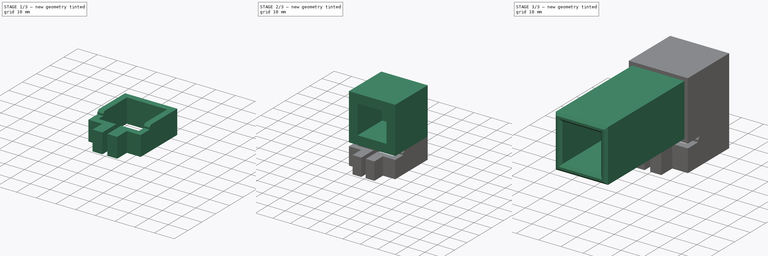
[diagram: build sequence overview — one tinted view per stage of 3, left to right]
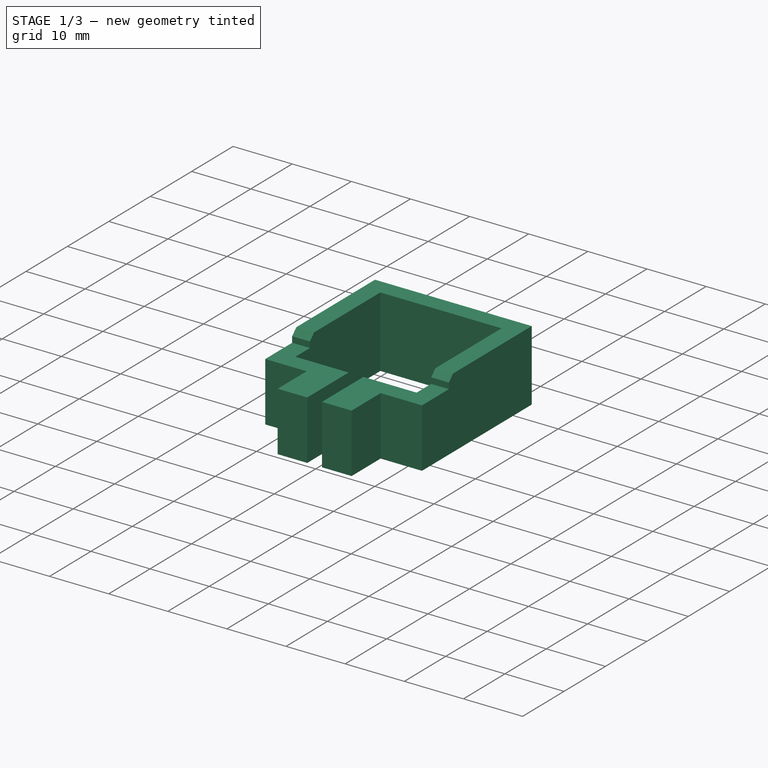
[diagram: stage 1 of 3 — iso view after this stage's code; geometry added in this stage tinted green]
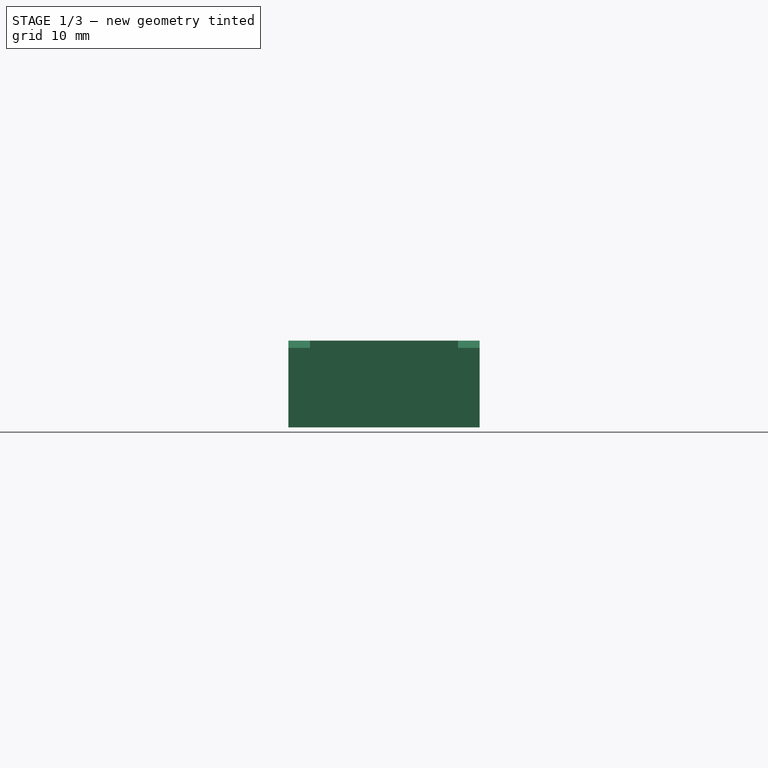
[diagram: stage 1 of 3 — front view after this stage's code; geometry added in this stage tinted green]
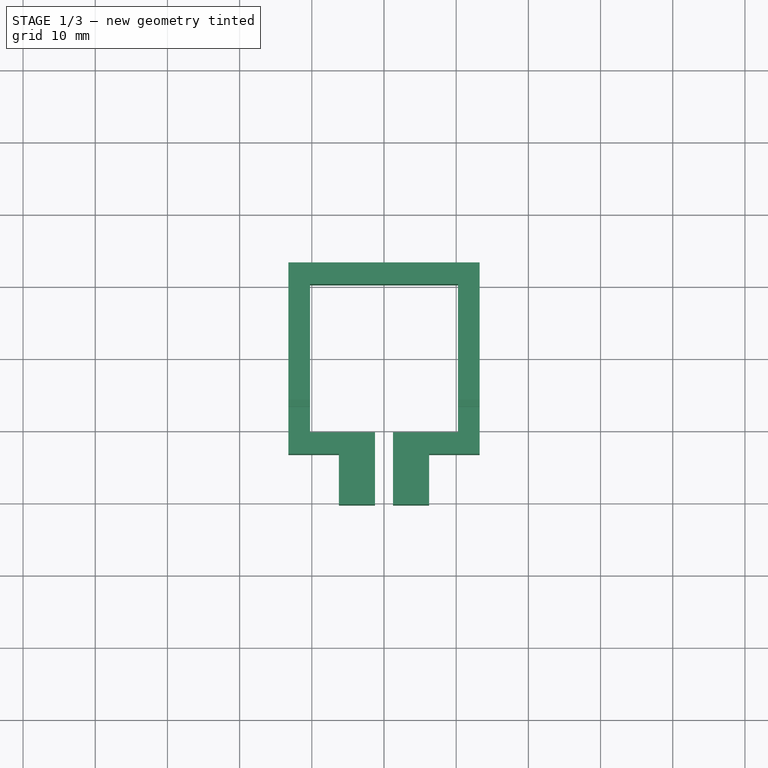
[diagram: stage 1 of 3 — top view after this stage's code; geometry added in this stage tinted green]
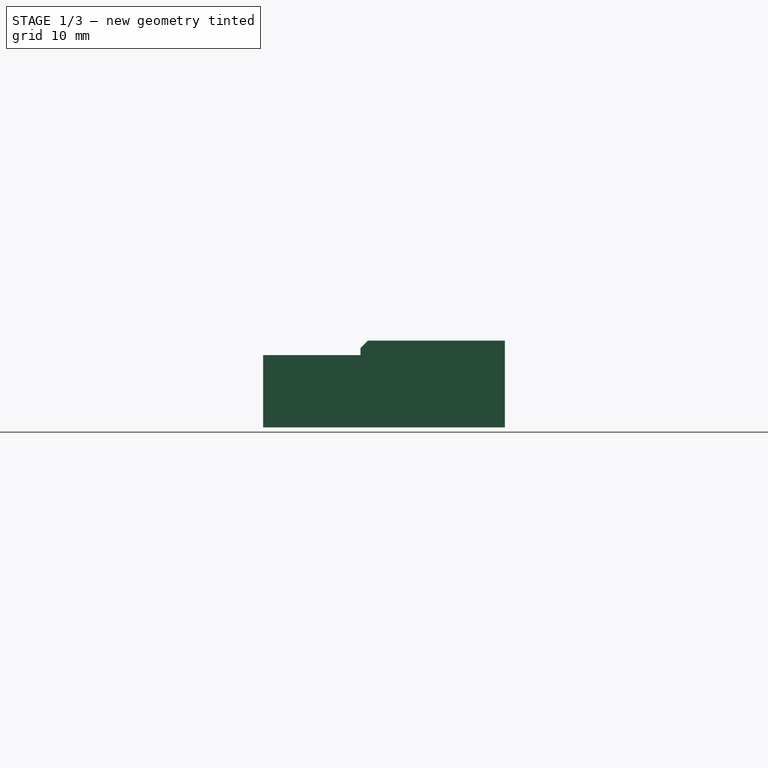
[diagram: stage 1 of 3 — right view after this stage's code; geometry added in this stage tinted green]
FCSTD DOCUMENT  (FreeCAD 0.21R33771 (Git))
Label: Dachreling_KlemmeV1
License: All rights reserved
LicenseURL: http://en.wikipedia.org/wiki/All_rights_reserved
objects: Sketcher::SketchObject×6, PartDesign::Pad×4, PartDesign::Chamfer×2, PartDesign::Pocket×2, PartDesign::Body×1
note: 23 computed .brp shape members not serialized (recipe doc carries the construction recipe); baked Part::Feature solids carry a one-line shape summary decoded from their .brp

FEATURE [Sketcher::SketchObject] Sketch
  FullyConstrained = true
  MapMode = 5
  Support = -> [XY_Plane]
  sketch-geometry (16):
    g0: LineSegment StartX=6.25 StartY=-20.25 StartZ=0 EndX=6.25 EndY=-13.25 EndZ=0
    g1: LineSegment StartX=6.25 StartY=-13.25 StartZ=0 EndX=13.25 EndY=-13.25 EndZ=0
    g2: LineSegment StartX=13.25 StartY=-13.25 StartZ=0 EndX=13.25 EndY=13.25 EndZ=0
    g3: LineSegment StartX=13.25 StartY=13.25 StartZ=0 EndX=-13.25 EndY=13.25 EndZ=0
    g4: LineSegment StartX=-13.25 StartY=13.25 StartZ=0 EndX=-13.25 EndY=-13.25 EndZ=0
    g5: LineSegment StartX=-13.25 StartY=-13.25 StartZ=0 EndX=-6.25 EndY=-13.25 EndZ=0
    g6: LineSegment StartX=-6.25 StartY=-13.25 StartZ=0 EndX=-6.25 EndY=-20.25 EndZ=0
    g7: LineSegment StartX=-6.25 StartY=-20.25 StartZ=0 EndX=-1.25 EndY=-20.25 EndZ=0
    g8: LineSegment StartX=-1.25 StartY=-20.25 StartZ=0 EndX=-1.25 EndY=-10.25 EndZ=0
    g9: LineSegment StartX=-1.25 StartY=-10.25 StartZ=0 EndX=-10.25 EndY=-10.25 EndZ=0
    g10: LineSegment StartX=-10.25 StartY=-10.25 StartZ=0 EndX=-10.25 EndY=10.25 EndZ=0
    g11: LineSegment StartX=-10.25 StartY=10.25 StartZ=0 EndX=10.25 EndY=10.25 EndZ=0
    g12: LineSegment StartX=10.25 StartY=10.25 StartZ=0 EndX=10.25 EndY=-10.25 EndZ=0
    g13: LineSegment StartX=10.25 StartY=-10.25 StartZ=0 EndX=1.25 EndY=-10.25 EndZ=0
    g14: LineSegment StartX=1.25 StartY=-10.25 StartZ=0 EndX=1.25 EndY=-20.25 EndZ=0
    g15: LineSegment StartX=1.25 StartY=-20.25 StartZ=0 EndX=6.25 EndY=-20.25 EndZ=0
  constraints (46):
    c: Vertical(g0)
    c: Coincident(g0,g1)
    c: Horizontal(g1)
    c: Coincident(g1,g2)
    c: Vertical(g2)
    c: Coincident(g2,g3)
    c: Horizontal(g3)
    c: Coincident(g3,g4)
    c: Vertical(g4)
    c: Coincident(g4,g5)
    c: Horizontal(g5)
    c: Coincident(g5,g6)
    c: Vertical(g6)
    c: Coincident(g6,g7)
    c: Horizontal(g7)
    c: Coincident(g7,g8)
    c: Vertical(g8)
    c: Coincident(g8,g9)
    c: Horizontal(g9)
    c: Coincident(g9,g10)
    c: Vertical(g10)
    c: Coincident(g10,g11)
    c: Horizontal(g11)
    c: Coincident(g11,g12)
    c: Coincident(g12,g13)
    c: Horizontal(g13)
    c: Coincident(g13,g14)
    c: Vertical(g14)
    c: Coincident(g14,g15)
    c: Coincident(g15,g0)
    c: Distance(g9,g4) = 3
    c: Distance(g9,g5) = 3
    c: Distance(g12,g2) = 3
    c: Distance(g12,g1) = 3
    c: Distance(g11,g3) = 3
    c: Distance(g8) = 10
    c: Distance(g7) = 5
    c: Distance(g15) = 5
    c: Horizontal(g15)
    c: Horizontal(g7,g14)
    c: Distance(g10) = 20.5
    c: Distance(g11) = 20.5
    c: Symmetric(g9,g12,g-2)
    c: Distance(g13) = 9
    c: Distance(g9) = 9
    c: Symmetric(g12,g11,g-1)
FEATURE [PartDesign::Pad] Pad
  Direction = (0,0,1)
  Length = 10
  Length2 = 10
  Profile = -> Sketch
  ReferenceAxis = -> Sketch [N_Axis]
  Type = 0
FEATURE [Sketcher::SketchObject] Sketch001
  ExternalGeometry = -> [Pad]
  FullyConstrained = true
  MapMode = 5
  Placement = pos=(0,0,10) rot=(0,0,1;0rad)
  Support = -> [Pad]
  sketch-geometry (8):
    g0: LineSegment StartX=-10.25 StartY=-6.75 StartZ=0 EndX=-13.25 EndY=-6.75 EndZ=0
    g1: LineSegment StartX=-13.25 StartY=-6.75 StartZ=0 EndX=-13.25 EndY=13.25 EndZ=0
    g2: LineSegment StartX=-13.25 StartY=13.25 StartZ=0 EndX=13.25 EndY=13.25 EndZ=0
    g3: LineSegment StartX=13.25 StartY=13.25 StartZ=0 EndX=13.25 EndY=-6.75 EndZ=0
    g4: LineSegment StartX=13.25 StartY=-6.75 StartZ=0 EndX=10.25 EndY=-6.75 EndZ=0
    g5: LineSegment StartX=10.25 StartY=-6.75 StartZ=0 EndX=10.25 EndY=10.25 EndZ=0
    g6: LineSegment StartX=10.25 StartY=10.25 StartZ=0 EndX=-10.25 EndY=10.25 EndZ=0
    g7: LineSegment StartX=-10.25 StartY=10.25 StartZ=0 EndX=-10.25 EndY=-6.75 EndZ=0
  constraints (20):
    c: PointOnObject(g0,g-3)
    c: PointOnObject(g0,g-4)
    c: Horizontal(g0)
    c: Coincident(g0,g1)
    c: Coincident(g1,g-6)
    c: Coincident(g1,g2)
    c: Coincident(g2,g-7)
    c: Coincident(g2,g3)
    c: PointOnObject(g3,g-7)
    c: Coincident(g3,g4)
    c: PointOnObject(g4,g-8)
    c: Horizontal(g4)
    c: Coincident(g4,g5)
    c: Coincident(g5,g-8)
    c: Coincident(g5,g6)
    c: Coincident(g6,g-5)
    c: Coincident(g6,g7)
    c: Coincident(g7,g0)
    c: Horizontal(g4,g0)
    c: Distance(g3) = 20
FEATURE [PartDesign::Pad] Pad001
  BaseFeature = -> Pad
  Direction = (0,0,1)
  Length = 2
  Length2 = 10
  Profile = -> Sketch001
  ReferenceAxis = -> Sketch001 [N_Axis]
  Type = 0
FEATURE [PartDesign::Chamfer] Chamfer
  Angle = 45
  Base = -> Pad001 [Edge70,Edge56]
  BaseFeature = -> Pad001
  ChamferType = 0
  FlipDirection = false
  Size = 1
  Size2 = 1
  SupportTransform = false
  UseAllEdges = false
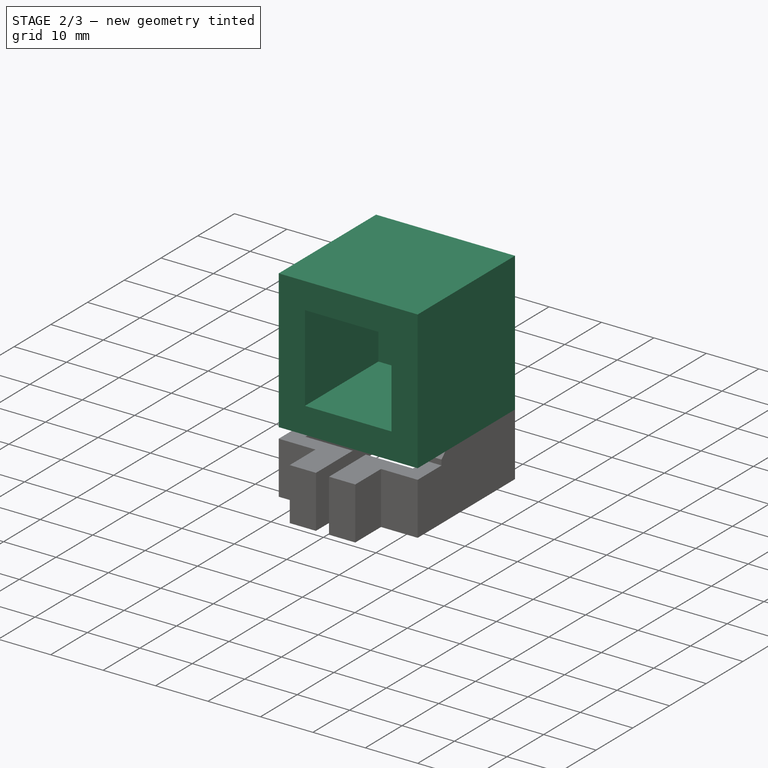
[diagram: stage 2 of 3 — iso view after this stage's code; geometry added in this stage tinted green]
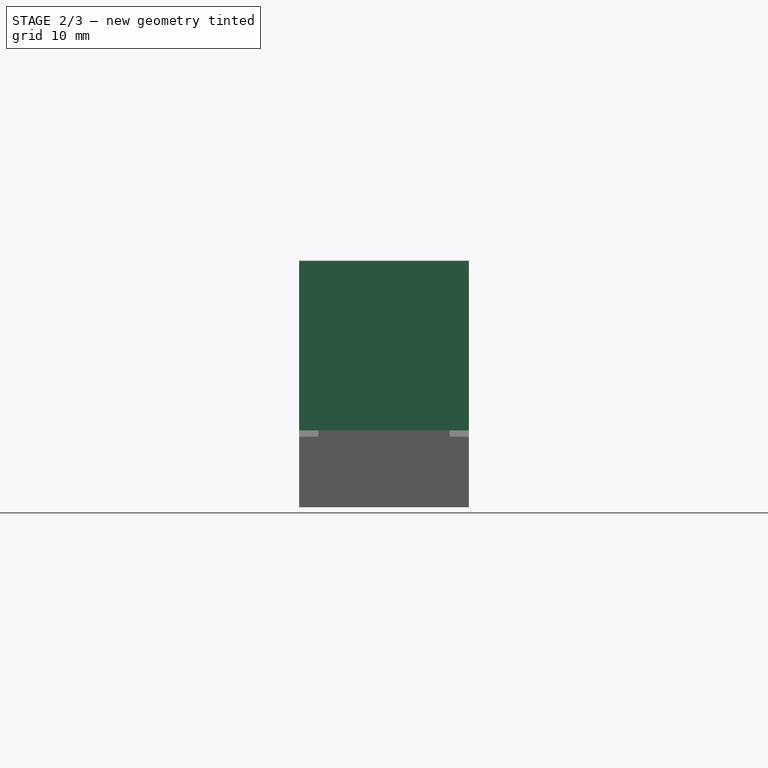
[diagram: stage 2 of 3 — front view after this stage's code; geometry added in this stage tinted green]
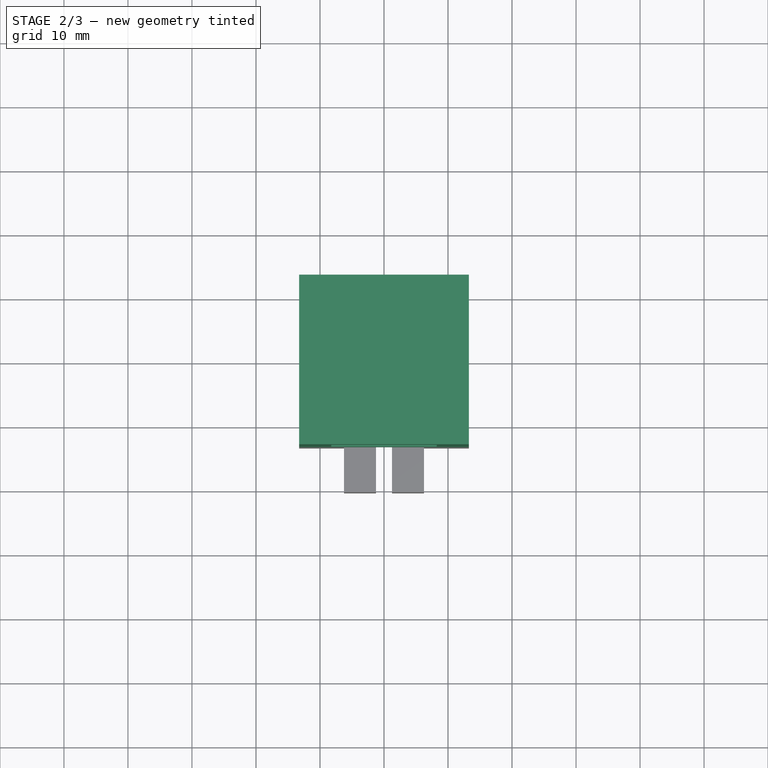
[diagram: stage 2 of 3 — top view after this stage's code; geometry added in this stage tinted green]
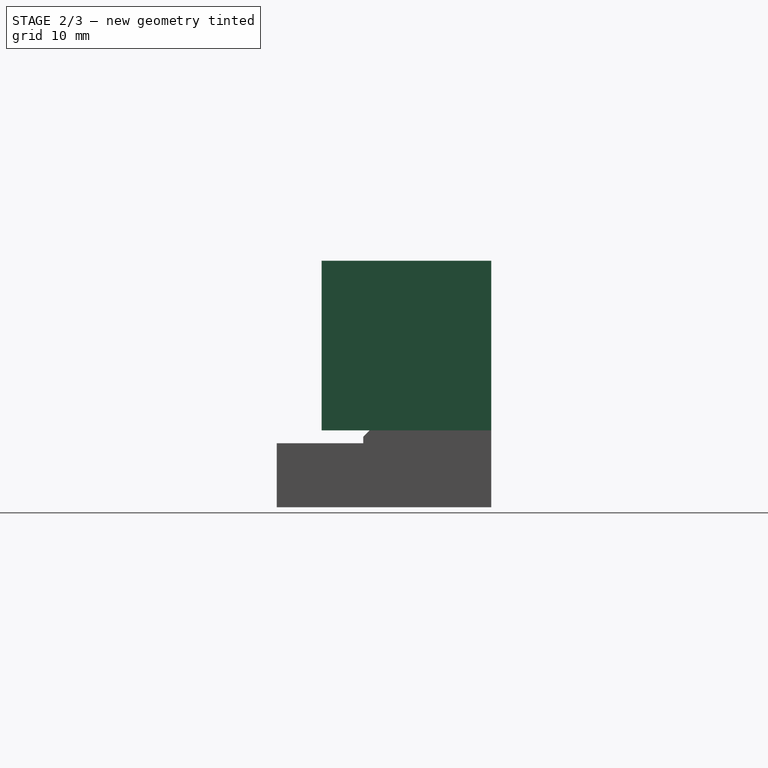
[diagram: stage 2 of 3 — right view after this stage's code; geometry added in this stage tinted green]
FEATURE [Sketcher::SketchObject] Sketch002
  ExternalGeometry = -> [Chamfer]
  FullyConstrained = true
  MapMode = 5
  Placement = pos=(0,0,12) rot=(0,0,1;0rad)
  Support = -> [Chamfer]
  sketch-geometry (4):
    g0: LineSegment StartX=-13.25 StartY=13.25 StartZ=0 EndX=13.25 EndY=13.25 EndZ=0
    g1: LineSegment StartX=13.25 StartY=13.25 StartZ=0 EndX=13.25 EndY=-13.25 EndZ=0
    g2: LineSegment StartX=13.25 StartY=-13.25 StartZ=0 EndX=-13.25 EndY=-13.25 EndZ=0
    g3: LineSegment StartX=-13.25 StartY=-13.25 StartZ=0 EndX=-13.25 EndY=13.25 EndZ=0
  constraints (11):
    c: Coincident(g0,g1)
    c: Coincident(g1,g2)
    c: Coincident(g2,g3)
    c: Coincident(g3,g0)
    c: Horizontal(g0)
    c: Horizontal(g2)
    c: Vertical(g1)
    c: Vertical(g3)
    c: Coincident(g0,g-4)
    c: Distance(g1) = 26.5
    c: Distance(g0) = 26.5
FEATURE [PartDesign::Pad] Pad002
  BaseFeature = -> Chamfer
  Direction = (0,0,1)
  Length = 26.5
  Length2 = 10
  Profile = -> Sketch002
  ReferenceAxis = -> Sketch002 [N_Axis]
  Type = 0
FEATURE [Sketcher::SketchObject] Sketch003
  ExternalGeometry = -> [Pad002]
  FullyConstrained = true
  MapMode = 5
  Placement = pos=(0,-13.25,0) rot=(1,0,0;1.5708rad)
  Support = -> [Pad002]
  sketch-geometry (4):
    g0: LineSegment StartX=-8.25 StartY=33.5 StartZ=0 EndX=8.25 EndY=33.5 EndZ=0
    g1: LineSegment StartX=8.25 StartY=33.5 StartZ=0 EndX=8.25 EndY=17 EndZ=0
    g2: LineSegment StartX=8.25 StartY=17 StartZ=0 EndX=-8.25 EndY=17 EndZ=0
    g3: LineSegment StartX=-8.25 StartY=17 StartZ=0 EndX=-8.25 EndY=33.5 EndZ=0
  constraints (11):
    c: Coincident(g0,g1)
    c: Coincident(g1,g2)
    c: Coincident(g2,g3)
    c: Coincident(g3,g0)
    c: Horizontal(g0)
    c: Vertical(g1)
    c: Vertical(g3)
    c: Symmetric(g2,g1,g-2)
    c: Distance(g0,g-4) = 5
    c: Distance(g2,g-3) = 5
    c: Distance(g1,g-5) = 5
FEATURE [PartDesign::Pocket] Pocket
  BaseFeature = -> Pad002
  Direction = (0,1,-2e-16)
  Length = 20
  Length2 = 5
  Profile = -> Sketch003
  ReferenceAxis = -> Sketch003 [N_Axis]
  Type = 0
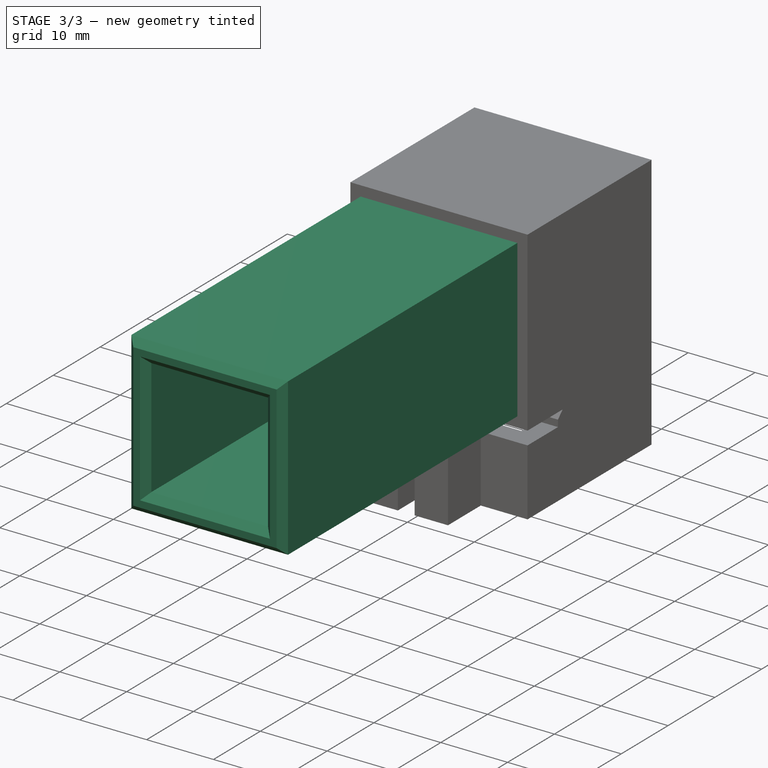
[diagram: stage 3 of 3 — iso view after this stage's code; geometry added in this stage tinted green]
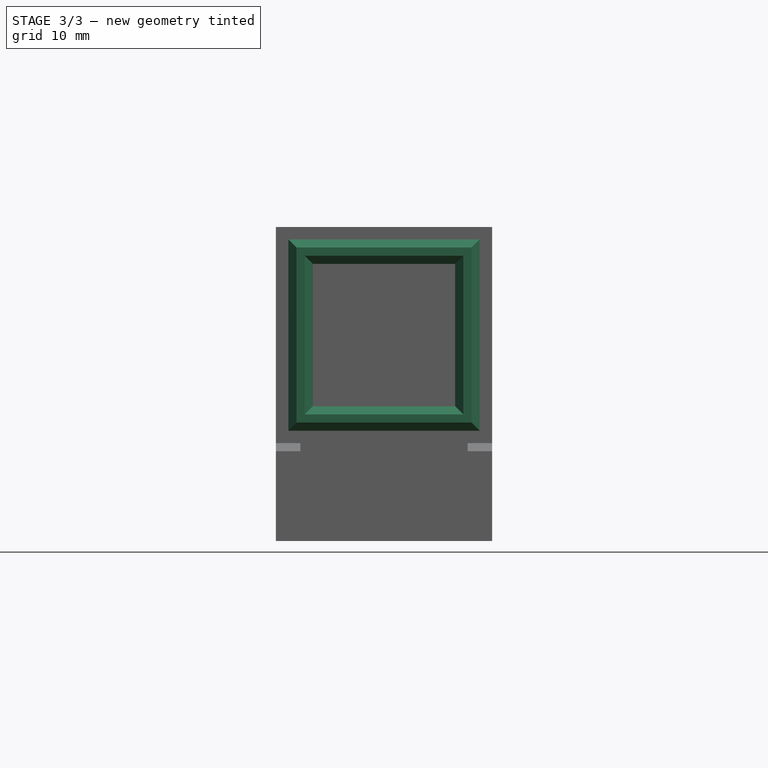
[diagram: stage 3 of 3 — front view after this stage's code; geometry added in this stage tinted green]
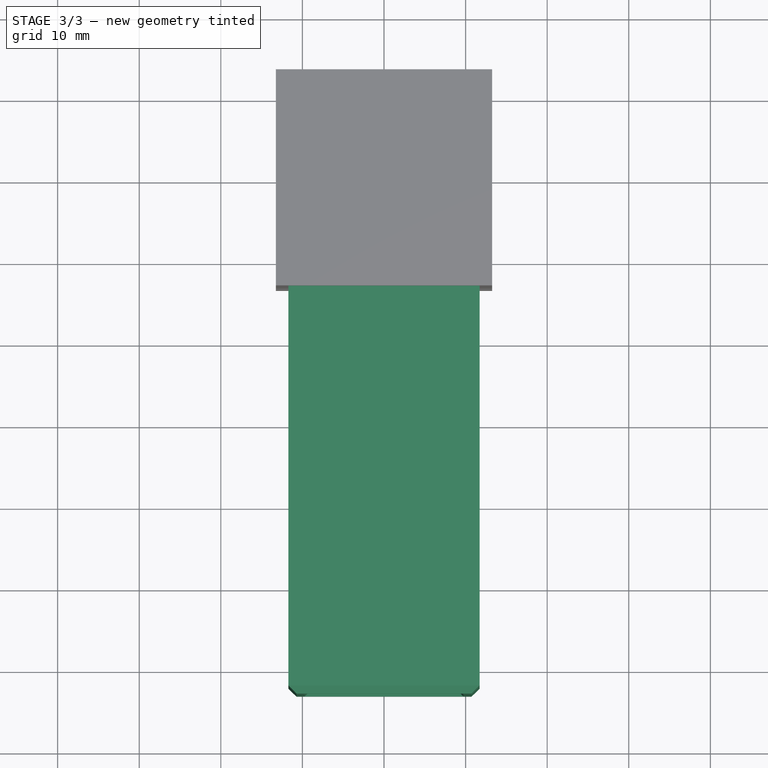
[diagram: stage 3 of 3 — top view after this stage's code; geometry added in this stage tinted green]
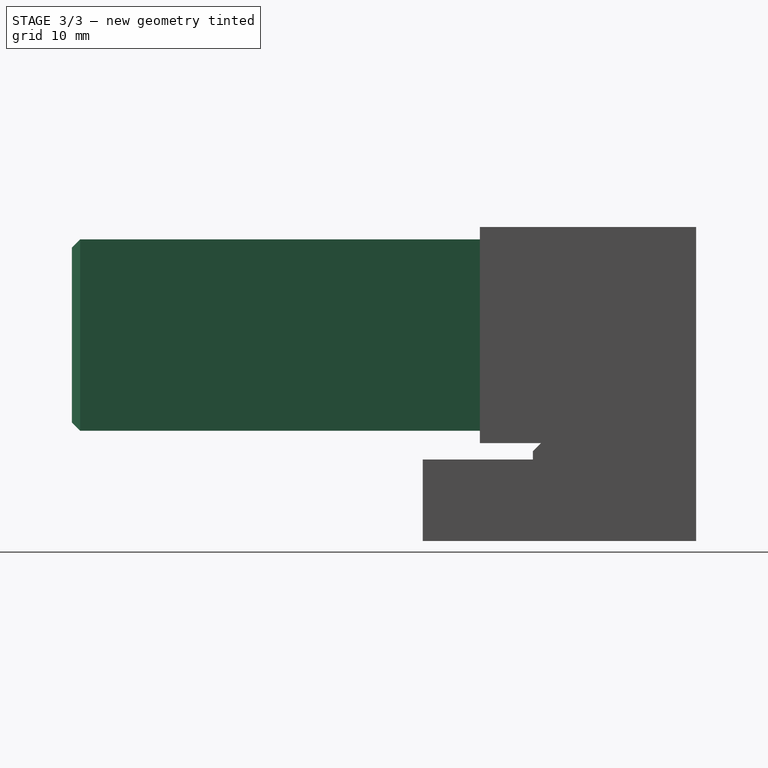
[diagram: stage 3 of 3 — right view after this stage's code; geometry added in this stage tinted green]
FEATURE [Sketcher::SketchObject] Sketch004
  ExternalGeometry = -> [Pocket]
  FullyConstrained = true
  MapMode = 5
  Placement = pos=(0,0,12) rot=(1,0,0;3.14159rad)
  Support = -> [Pocket]
  sketch-geometry (4):
    g0: LineSegment StartX=-10.25 StartY=-10.25 StartZ=0 EndX=10.25 EndY=-10.25 EndZ=0
    g1: LineSegment StartX=10.25 StartY=-10.25 StartZ=0 EndX=10.25 EndY=10.25 EndZ=0
    g2: LineSegment StartX=10.25 StartY=10.25 StartZ=0 EndX=-10.25 EndY=10.25 EndZ=0
    g3: LineSegment StartX=-10.25 StartY=10.25 StartZ=0 EndX=-10.25 EndY=-10.25 EndZ=0
  constraints (11):
    c: Coincident(g0,g1)
    c: Coincident(g1,g2)
    c: Coincident(g2,g3)
    c: Coincident(g3,g0)
    c: Horizontal(g0)
    c: Horizontal(g2)
    c: Vertical(g1)
    c: Vertical(g3)
    c: Coincident(g0,g-4)
    c: Distance(g2) = 20.5
    c: Distance(g1) = 20.5
FEATURE [PartDesign::Pocket] Pocket001
  BaseFeature = -> Pocket
  Direction = (0,0,1)
  Length = 5
  Length2 = 5
  Profile = -> Sketch004
  ReferenceAxis = -> Sketch004 [N_Axis]
  Type = 0
FEATURE [Sketcher::SketchObject] Sketch005
  ExternalGeometry = -> [Pocket001]
  FullyConstrained = true
  MapMode = 5
  Placement = pos=(0,-13.25,0) rot=(1,0,0;1.5708rad)
  Support = -> [Pocket001]
  sketch-geometry (8):
    g0: LineSegment StartX=-11.725 StartY=36.975 StartZ=0 EndX=11.725 EndY=36.975 EndZ=0
    g1: LineSegment StartX=11.725 StartY=36.975 StartZ=0 EndX=11.725 EndY=13.525 EndZ=0
    g2: LineSegment StartX=11.725 StartY=13.525 StartZ=0 EndX=-11.725 EndY=13.525 EndZ=0
    g3: LineSegment StartX=-11.725 StartY=13.525 StartZ=0 EndX=-11.725 EndY=36.975 EndZ=0
    g4: LineSegment StartX=-8.725 StartY=33.975 StartZ=0 EndX=8.725 EndY=33.975 EndZ=0
    g5: LineSegment StartX=8.725 StartY=33.975 StartZ=0 EndX=8.725 EndY=16.525 EndZ=0
    g6: LineSegment StartX=8.725 StartY=16.525 StartZ=0 EndX=-8.725 EndY=16.525 EndZ=0
    g7: LineSegment StartX=-8.725 StartY=16.525 StartZ=0 EndX=-8.725 EndY=33.975 EndZ=0
  constraints (24):
    c: Coincident(g0,g1)
    c: Coincident(g1,g2)
    c: Coincident(g2,g3)
    c: Coincident(g3,g0)
    c: Horizontal(g0)
    c: Horizontal(g2)
    c: Vertical(g1)
    c: Vertical(g3)
    c: Distance(g0,g-3) = 1.525
    c: Distance(g2,g-4) = 1.525
    c: Distance(g1,g-5) = 1.525
    c: Distance(g1,g-6) = 1.525
    c: Coincident(g4,g5)
    c: Coincident(g5,g6)
    c: Coincident(g6,g7)
    c: Coincident(g7,g4)
    c: Horizontal(g4)
    c: Horizontal(g6)
    c: Vertical(g5)
    c: Vertical(g7)
    c: Distance(g5,g1) = 3
    c: Distance(g5,g2) = 3
    c: Distance(g6,g3) = 3
    c: Distance(g4,g0) = 3
FEATURE [PartDesign::Pad] Pad003
  BaseFeature = -> Pocket001
  Direction = (0,-1,2e-16)
  Length = 50
  Length2 = 10
  Profile = -> Sketch005
  ReferenceAxis = -> Sketch005 [N_Axis]
  Type = 0
FEATURE [PartDesign::Chamfer] Chamfer001
  Angle = 45
  Base = -> Pad003 [Face49]
  BaseFeature = -> Pad003
  ChamferType = 0
  FlipDirection = false
  Size = 1
  Size2 = 1
  SupportTransform = false
  UseAllEdges = false
FEATURE [PartDesign::Body] Body  label="Körper"
  Group = -> [Sketch,Pad,Sketch001,Pad001,Chamfer,Sketch002,Pad002,Sketch003,Pocket,Sketch004,Pocket001,Sketch005,Pad003,Chamfer001]
  Origin = -> Origin
  Tip = -> Chamfer001
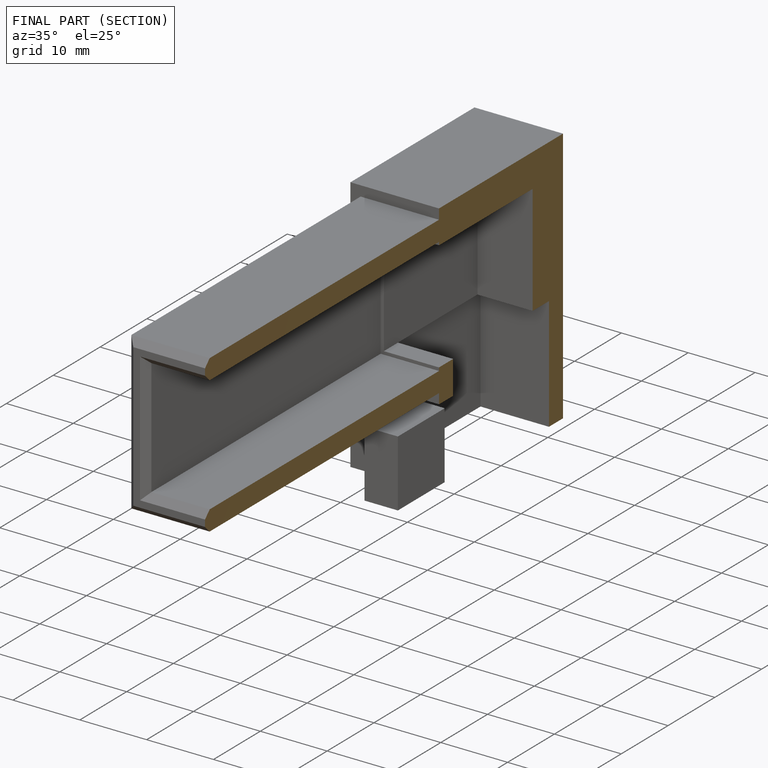
[diagram: finished part — half-section view (interior)]
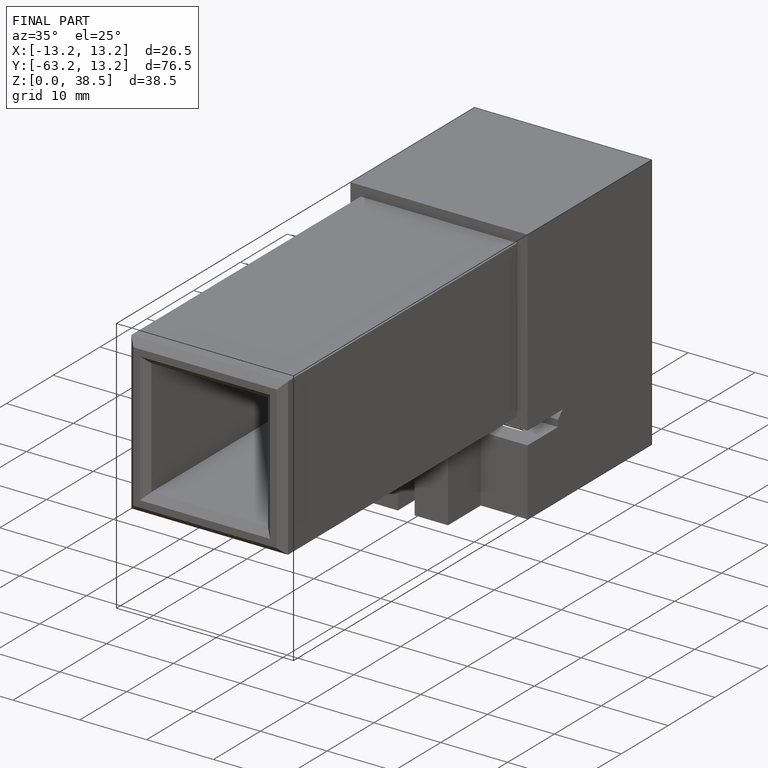
[diagram: finished part — iso view with bounding-box wireframe]
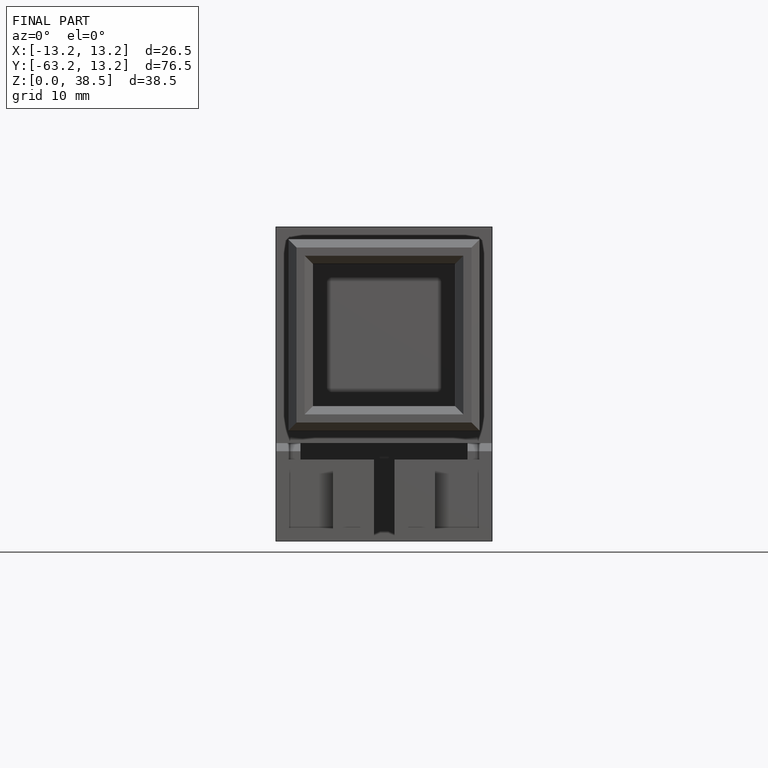
[diagram: finished part — front view with bounding-box wireframe]
